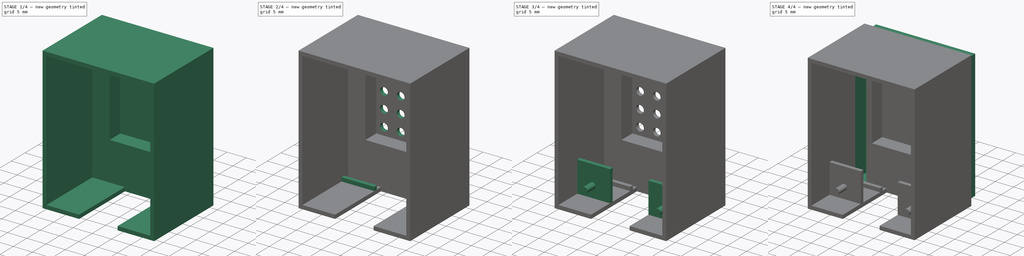
[diagram: build sequence overview — one tinted view per stage of 4, left to right]
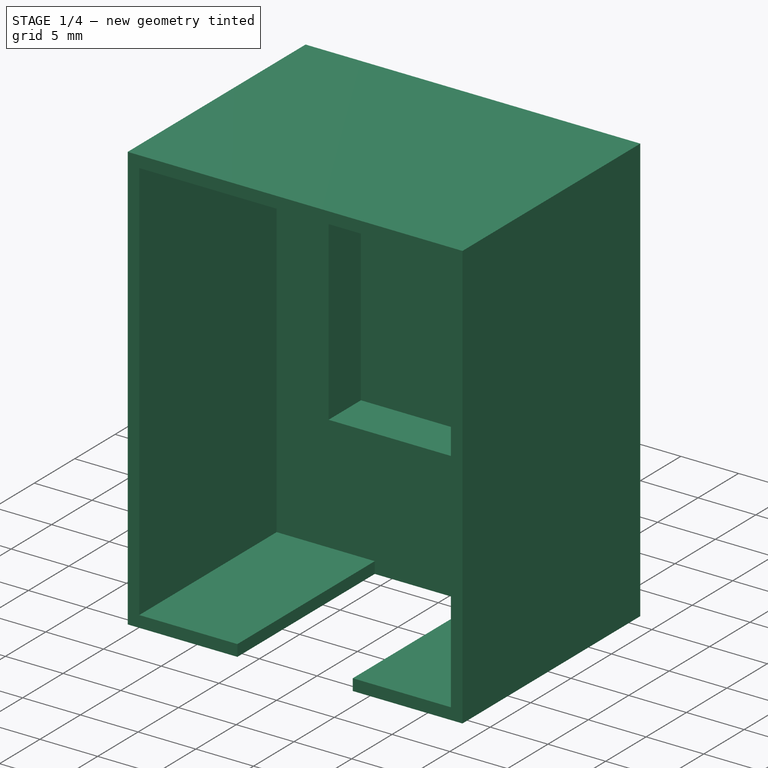
[diagram: stage 1 of 4 — iso view after this stage's code; geometry added in this stage tinted green]
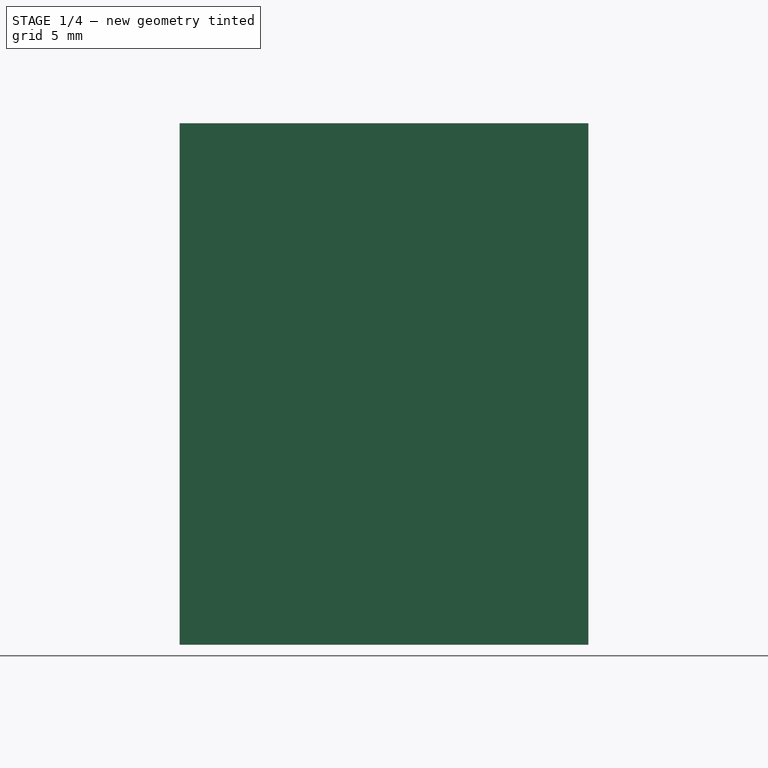
[diagram: stage 1 of 4 — front view after this stage's code; geometry added in this stage tinted green]
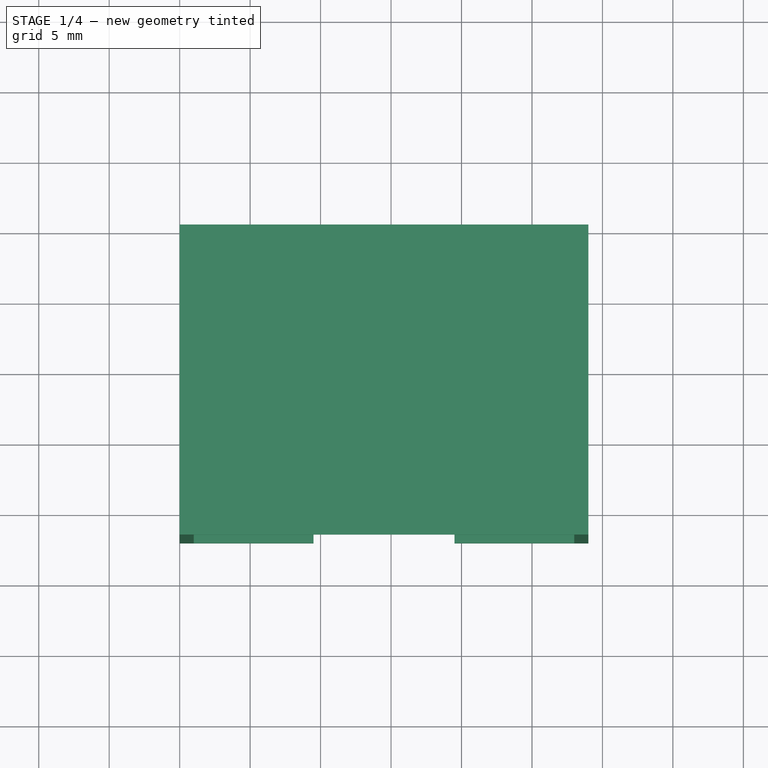
[diagram: stage 1 of 4 — top view after this stage's code; geometry added in this stage tinted green]
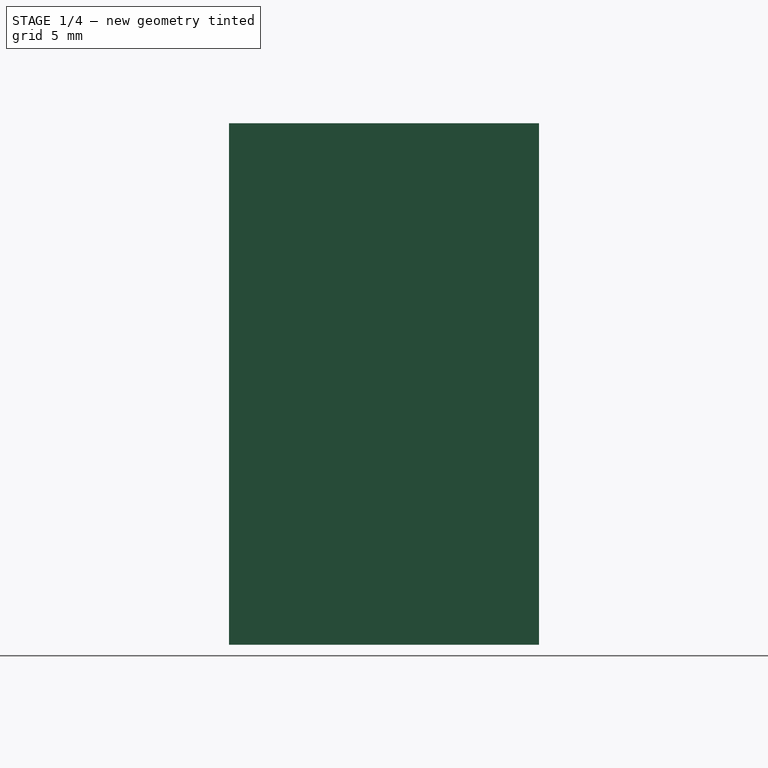
[diagram: stage 1 of 4 — right view after this stage's code; geometry added in this stage tinted green]
FCSTD DOCUMENT  (FreeCAD 0.19R24291 (Git))
Label: ir_box
License: All rights reserved
LicenseURL: http://en.wikipedia.org/wiki/All_rights_reserved
objects: Sketcher::SketchObject×13, PartDesign::Pad×7, PartDesign::Pocket×6, PartDesign::LinearPattern×2, PartDesign::Body×2, PartDesign::MultiTransform×1
note: 44 computed .brp shape members not serialized (recipe doc carries the construction recipe); baked Part::Feature solids carry a one-line shape summary decoded from their .brp

FEATURE [Sketcher::SketchObject] Sketch
  FullyConstrained = true
  MapMode = 5
  Placement = pos=(0,0,0) rot=(1,0,0;1.5708rad)
  Support = -> [XZ_Plane]
  sketch-geometry (4):
    g0: LineSegment StartX=0 StartY=0 StartZ=0 EndX=29 EndY=0 EndZ=0
    g1: LineSegment StartX=29 StartY=0 StartZ=0 EndX=29 EndY=37 EndZ=0
    g2: LineSegment StartX=29 StartY=37 StartZ=0 EndX=0 EndY=37 EndZ=0
    g3: LineSegment StartX=0 StartY=37 StartZ=0 EndX=0 EndY=0 EndZ=0
  constraints (11):
    c: Coincident(g0,g1)
    c: Coincident(g1,g2)
    c: Coincident(g2,g3)
    c: Coincident(g3,g0)
    c: Horizontal(g0)
    c: Horizontal(g2)
    c: Vertical(g1)
    c: Vertical(g3)
    c: Coincident(g0,g-1)
    c: Distance(g1) = 37
    c: Distance(g2) = 29
FEATURE [PartDesign::Pad] Pad
  Direction = (1,1,1)
  Length = 22
  Length2 = 100
  Placement = pos=(0,0,0) rot=(1,0,0;1.5708rad)
  Profile = -> Sketch
  Type = 0
FEATURE [Sketcher::SketchObject] Sketch002
  ExternalGeometry = -> [Pad]
  FullyConstrained = true
  MapMode = 5
  Placement = pos=(0,-22,0) rot=(1,0,0;1.5708rad)
  Support = -> [Pad]
  sketch-geometry (4):
    g0: LineSegment StartX=1 StartY=1 StartZ=0 EndX=28 EndY=1 EndZ=0
    g1: LineSegment StartX=28 StartY=1 StartZ=0 EndX=28 EndY=36 EndZ=0
    g2: LineSegment StartX=28 StartY=36 StartZ=0 EndX=1 EndY=36 EndZ=0
    g3: LineSegment StartX=1 StartY=36 StartZ=0 EndX=1 EndY=1 EndZ=0
  constraints (12):
    c: Coincident(g0,g1)
    c: Coincident(g1,g2)
    c: Coincident(g2,g3)
    c: Coincident(g3,g0)
    c: Horizontal(g0)
    c: Horizontal(g2)
    c: Vertical(g1)
    c: Vertical(g3)
    c: Distance(g1,g-3) = 1
    c: DistanceX(g-2,g0) = 1
    c: DistanceY(g-1,g0) = 1
    c: Distance(g2,g-4) = 1
FEATURE [PartDesign::Pocket] Pocket  label="Wemos Pocket001"
  BaseFeature = -> Pad
  Length = 17
  Length2 = 100
  Placement = pos=(0,0,0) rot=(1,0,0;1.5708rad)
  Profile = -> Sketch002
  Type = 0
FEATURE [Sketcher::SketchObject] Sketch003
  ExternalGeometry = -> [Pocket]
  FullyConstrained = true
  MapMode = 5
  Placement = pos=(0,-5,1e-16) rot=(1,0,0;1.5708rad)
  Support = -> [Pocket]
  sketch-geometry (4):
    g0: LineSegment StartX=5.5 StartY=36 StartZ=0 EndX=23.5 EndY=36 EndZ=0
    g1: LineSegment StartX=23.5 StartY=36 StartZ=0 EndX=23.5 EndY=11 EndZ=0
    g2: LineSegment StartX=23.5 StartY=11 StartZ=0 EndX=5.5 EndY=11 EndZ=0
    g3: LineSegment StartX=5.5 StartY=11 StartZ=0 EndX=5.5 EndY=36 EndZ=0
  constraints (12):
    c: Coincident(g0,g1)
    c: Coincident(g1,g2)
    c: Coincident(g2,g3)
    c: Coincident(g3,g0)
    c: Horizontal(g0)
    c: Horizontal(g2)
    c: Vertical(g1)
    c: Vertical(g3)
    c: PointOnObject(g0,g-3)
    c: Distance(g2,g-6) = 4.5
    c: Distance(g1,g-4) = 4.5
    c: Distance(g1) = 25
FEATURE [PartDesign::Pocket] Pocket001  label="Chip Pocket"
  BaseFeature = -> Pocket
  Length = 4
  Length2 = 100
  Placement = pos=(0,0,0) rot=(1,0,0;1.5708rad)
  Profile = -> Sketch003
  Type = 0
FEATURE [Sketcher::SketchObject] Sketch004
  ExternalGeometry = -> [Pocket001]
  FullyConstrained = true
  MapMode = 5
  Placement = pos=(0,-22,0) rot=(1,0,0;1.5708rad)
  Support = -> [Pocket001]
  sketch-geometry (6):
    g0: LineSegment StartX=9.5 StartY=0 StartZ=0 EndX=19.5 EndY=0 EndZ=0
    g1: LineSegment StartX=19.5 StartY=0 StartZ=0 EndX=19.5 EndY=1 EndZ=0
    g2: LineSegment StartX=19.5 StartY=1 StartZ=0 EndX=9.5 EndY=1 EndZ=0
    g3: LineSegment StartX=9.5 StartY=1 StartZ=0 EndX=9.5 EndY=0 EndZ=0
    g4: LineSegment StartX=1 StartY=1 StartZ=0 EndX=9.5 EndY=1 EndZ=0
    g5: LineSegment StartX=19.5 StartY=1 StartZ=0 EndX=28 EndY=1 EndZ=0
  constraints (16):
    c: Coincident(g0,g1)
    c: Coincident(g1,g2)
    c: Coincident(g2,g3)
    c: Coincident(g3,g0)
    c: Horizontal(g0)
    c: Horizontal(g2)
    c: Vertical(g1)
    c: Vertical(g3)
    c: PointOnObject(g0,g-1)
    c: PointOnObject(g1,g-3)
    c: Distance(g2) = 10
    c: Coincident(g4,g-3)
    c: Coincident(g4,g2)
    c: Coincident(g5,g1)
    c: Coincident(g5,g-3)
    c: Equal(g5,g4)
FEATURE [PartDesign::Pocket] Pocket002  label="USB Port"
  BaseFeature = -> Pocket001
  Length = 17
  Length2 = 100
  Placement = pos=(0,0,0) rot=(1,0,0;1.5708rad)
  Profile = -> Sketch004
  Type = 0
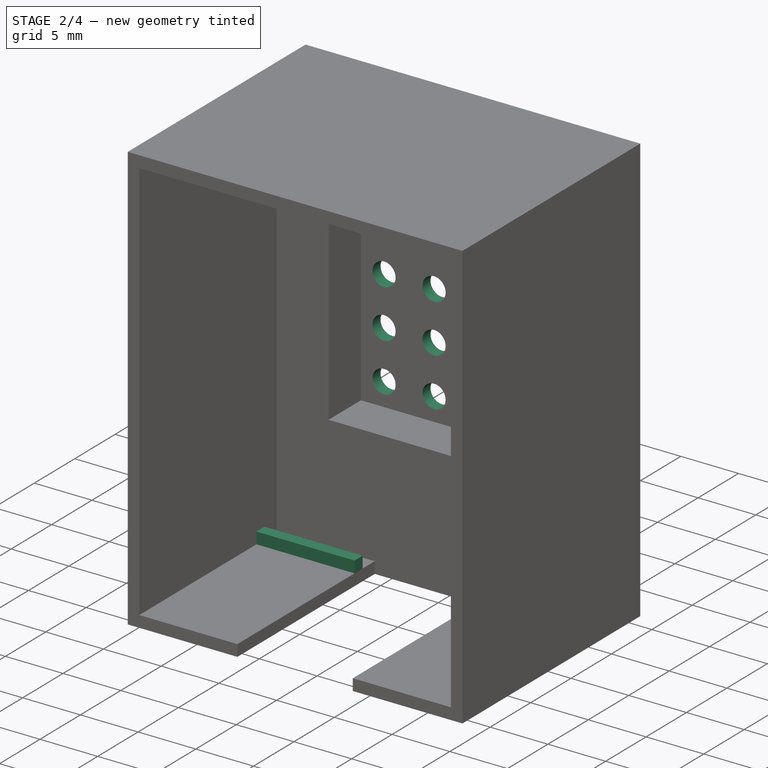
[diagram: stage 2 of 4 — iso view after this stage's code; geometry added in this stage tinted green]
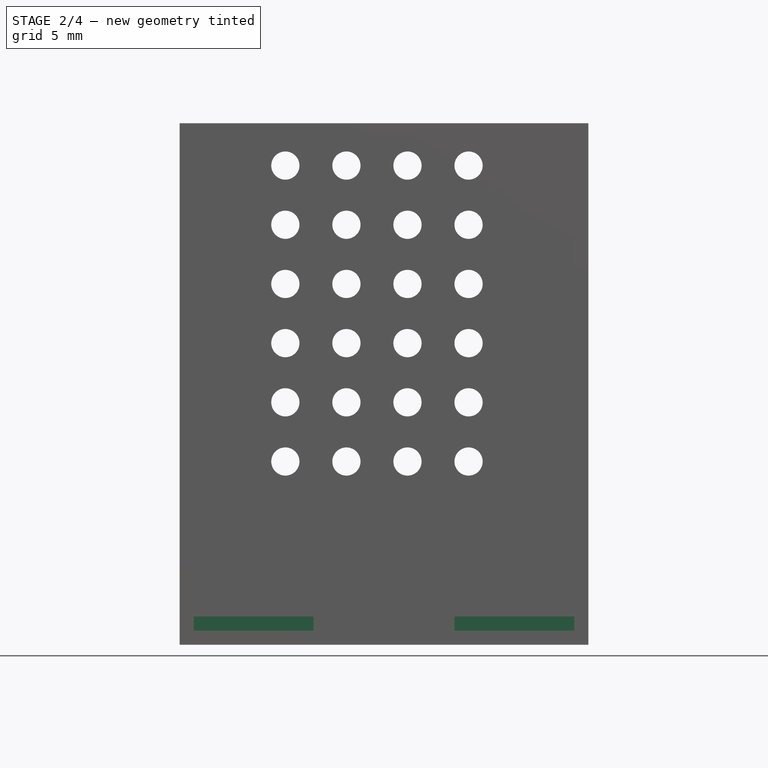
[diagram: stage 2 of 4 — front view after this stage's code; geometry added in this stage tinted green]
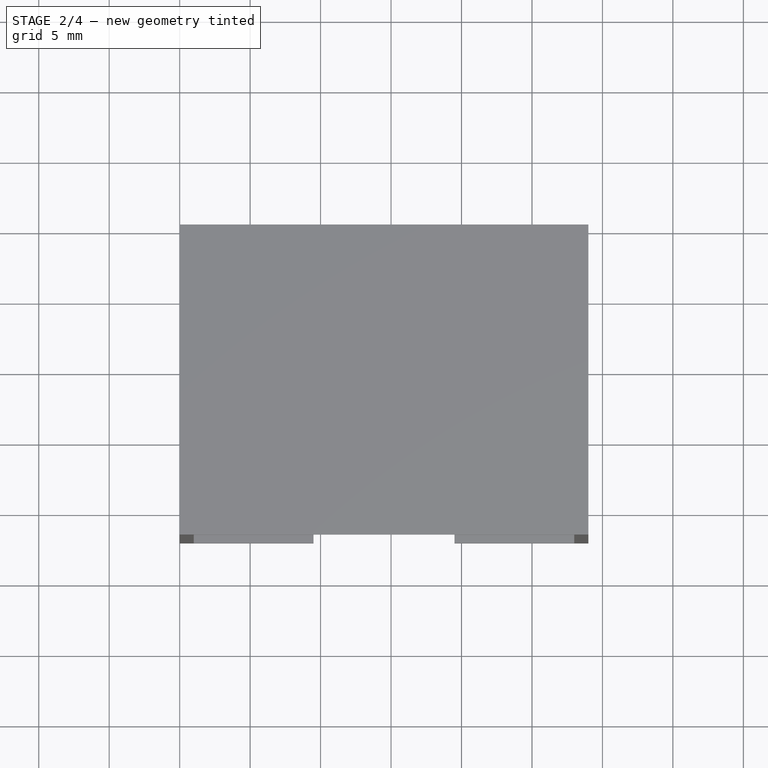
[diagram: stage 2 of 4 — top view after this stage's code; geometry added in this stage tinted green]
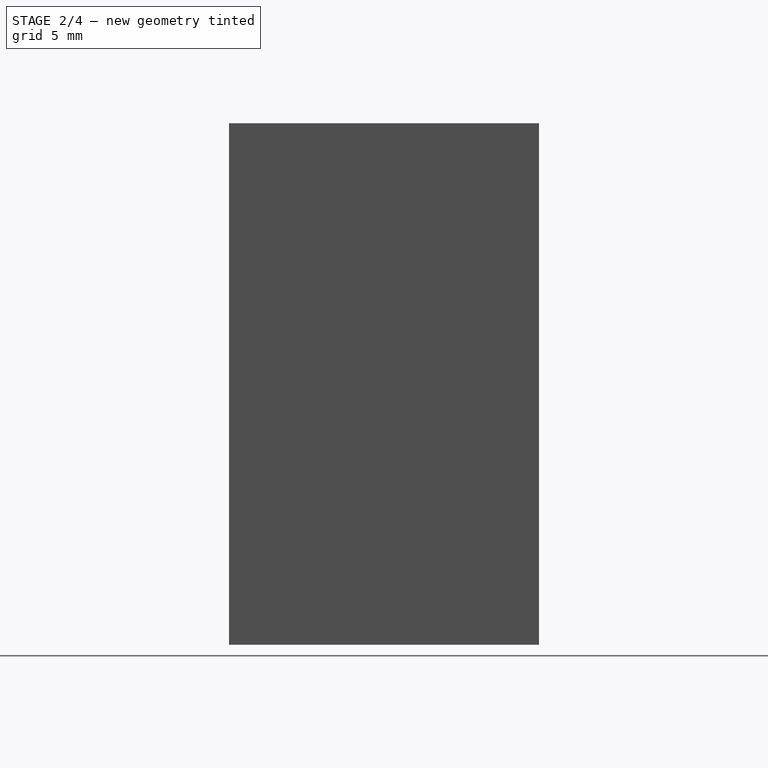
[diagram: stage 2 of 4 — right view after this stage's code; geometry added in this stage tinted green]
FEATURE [Sketcher::SketchObject] Sketch005
  ExternalGeometry = -> [Pocket002]
  FullyConstrained = true
  MapMode = 5
  Placement = pos=(0,-1,0) rot=(1,0,0;1.5708rad)
  Support = -> [Pocket002]
  sketch-geometry (3):
    g0: Circle CenterX=7.5 CenterY=13 CenterZ=0 NormalX=0 NormalY=0 NormalZ=1 AngleXU=0 Radius=1
    g1: LineSegment StartX=7.5 StartY=11 StartZ=0 EndX=7.5 EndY=13 EndZ=0
    g2: LineSegment StartX=7.5 StartY=13 StartZ=0 EndX=5.5 EndY=13 EndZ=0
  constraints (9):
    c: PointOnObject(g1,g-3)
    c: Coincident(g1,g0)
    c: Vertical(g1)
    c: Coincident(g2,g0)
    c: PointOnObject(g2,g-4)
    c: Horizontal(g2)
    c: Equal(g2,g1)
    c: Diameter(g0) = 2
    c: Distance(g1) = 2
FEATURE [PartDesign::Pocket] Pocket003  label="Chip Airhole"
  BaseFeature = -> Pocket002
  Length = 5
  Length2 = 100
  Placement = pos=(0,0,0) rot=(1,0,0;1.5708rad)
  Profile = -> Sketch005
  Type = 0
FEATURE [PartDesign::LinearPattern] LinearPattern
  Direction = -> Sketch005 [H_Axis]
  Length = 13
  Occurrences = 4
  Placement = pos=(0,0,0) rot=(1,0,0;1.5708rad)
FEATURE [PartDesign::LinearPattern] LinearPattern001
  Direction = -> Sketch005 [V_Axis]
  Length = 21
  Occurrences = 6
  Placement = pos=(0,0,0) rot=(1,0,0;1.5708rad)
FEATURE [PartDesign::MultiTransform] MultiTransform  label="Chip Airholes"
  BaseFeature = -> Pocket003
  Originals = -> [Pocket003]
  Placement = pos=(0,0,0) rot=(1,0,0;1.5708rad)
  Transformations = -> [LinearPattern,LinearPattern001]
FEATURE [Sketcher::SketchObject] Sketch006
  ExternalGeometry = -> [MultiTransform]
  FullyConstrained = true
  MapMode = 5
  Placement = pos=(1,0,0) rot=(0.707107,0,0.707107;3.14159rad)
  Support = -> [MultiTransform]
  sketch-geometry (4):
    g0: LineSegment StartX=1 StartY=15 StartZ=0 EndX=9 EndY=15 EndZ=0
    g1: LineSegment StartX=9 StartY=15 StartZ=0 EndX=9 EndY=14 EndZ=0
    g2: LineSegment StartX=9 StartY=14 StartZ=0 EndX=1 EndY=14 EndZ=0
    g3: LineSegment StartX=1 StartY=14 StartZ=0 EndX=1 EndY=15 EndZ=0
  constraints (11):
    c: Coincident(g0,g1)
    c: Coincident(g1,g2)
    c: Coincident(g2,g3)
    c: Coincident(g3,g0)
    c: Horizontal(g0)
    c: Horizontal(g2)
    c: Vertical(g1)
    c: Tangent(g-4,g3)
    c: Distance(g0,g-5) = 10
    c: Distance(g1) = 1
    c: Distance(g0) = 8
FEATURE [Sketcher::SketchObject] Sketch008
  FullyConstrained = false
  MapMode = 5
  Placement = pos=(0,3e-15,1) rot=(0,0,1;3.14159rad)
  sketch-geometry (10):
    g0: LineSegment StartX=-9.5 StartY=7.5 StartZ=0 EndX=-1 EndY=7.5 EndZ=0
    g1: LineSegment StartX=-1 StartY=7.5 StartZ=0 EndX=-1 EndY=6.5 EndZ=0
    g2: LineSegment StartX=-1 StartY=6.5 StartZ=0 EndX=-9.5 EndY=6.5 EndZ=0
    g3: LineSegment StartX=-9.5 StartY=6.5 StartZ=0 EndX=-9.5 EndY=7.5 EndZ=0
    g4: LineSegment StartX=-28 StartY=7.5 StartZ=0 EndX=-19.5 EndY=7.5 EndZ=0
    g5: LineSegment StartX=-19.5 StartY=7.5 StartZ=0 EndX=-19.5 EndY=6.5 EndZ=0
    g6: LineSegment StartX=-19.5 StartY=6.5 StartZ=0 EndX=-28 EndY=6.5 EndZ=0
    g7: LineSegment StartX=-28 StartY=6.5 StartZ=0 EndX=-28 EndY=7.5 EndZ=0
    g8: LineSegment StartX=-19.5 StartY=6.5 StartZ=0 EndX=-19.5 EndY=5 EndZ=0
    g9: LineSegment StartX=-9.5 StartY=6.5 StartZ=0 EndX=-9.5 EndY=5 EndZ=0
  constraints (18):
    c: Coincident(g0,g1)
    c: Coincident(g1,g2)
    c: Coincident(g2,g3)
    c: Coincident(g3,g0)
    c: Horizontal(g0)
    c: Horizontal(g2)
    c: Coincident(g4,g5)
    c: Coincident(g5,g6)
    c: Coincident(g6,g7)
    c: Coincident(g7,g4)
    c: Horizontal(g4)
    c: Horizontal(g6)
    c: Equal(g5,g3)
    c: Distance(g3) = 1
    c: Coincident(g8,g5)
    c: Coincident(g9,g2)
    c: Equal(g8,g9)
    c: Distance(g8) = 1.5
FEATURE [PartDesign::Pad] Pad002  label="Security Pad"
  BaseFeature = -> MultiTransform
  Direction = (1,1,1)
  Length = 1
  Length2 = 100
  Placement = pos=(0,0,0) rot=(1,0,0;1.5708rad)
  Profile = -> Sketch008
  Type = 0
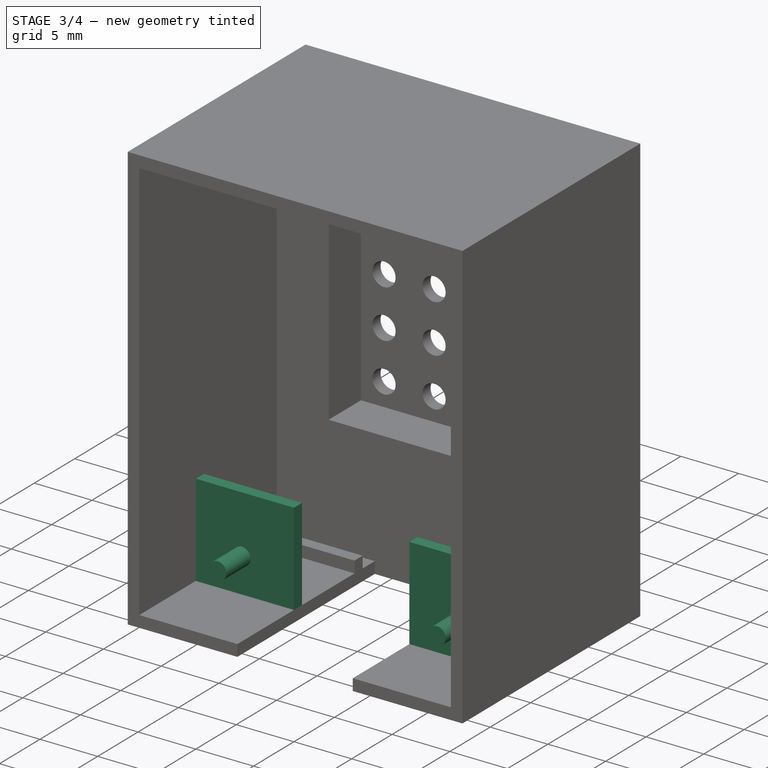
[diagram: stage 3 of 4 — iso view after this stage's code; geometry added in this stage tinted green]
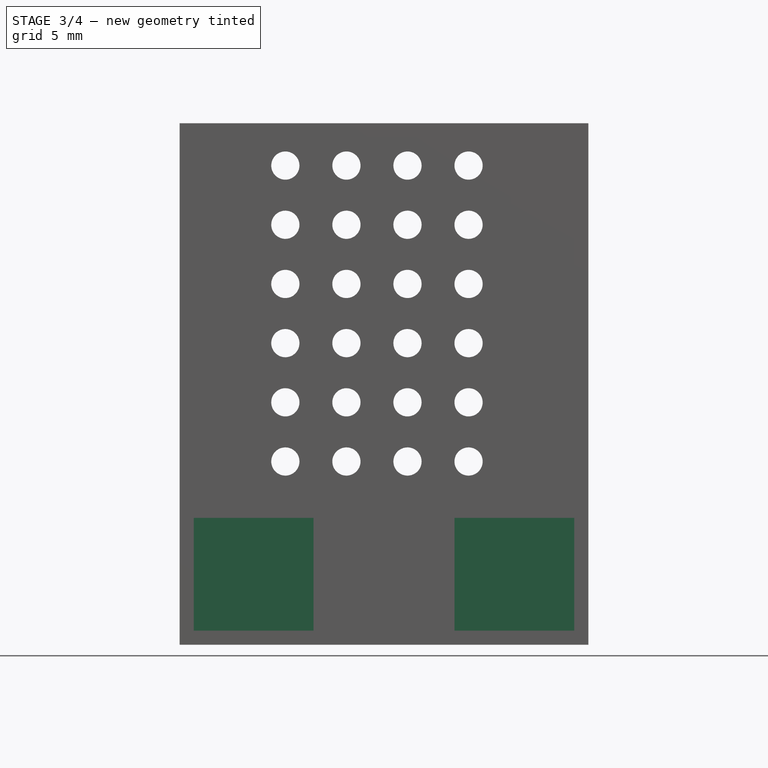
[diagram: stage 3 of 4 — front view after this stage's code; geometry added in this stage tinted green]
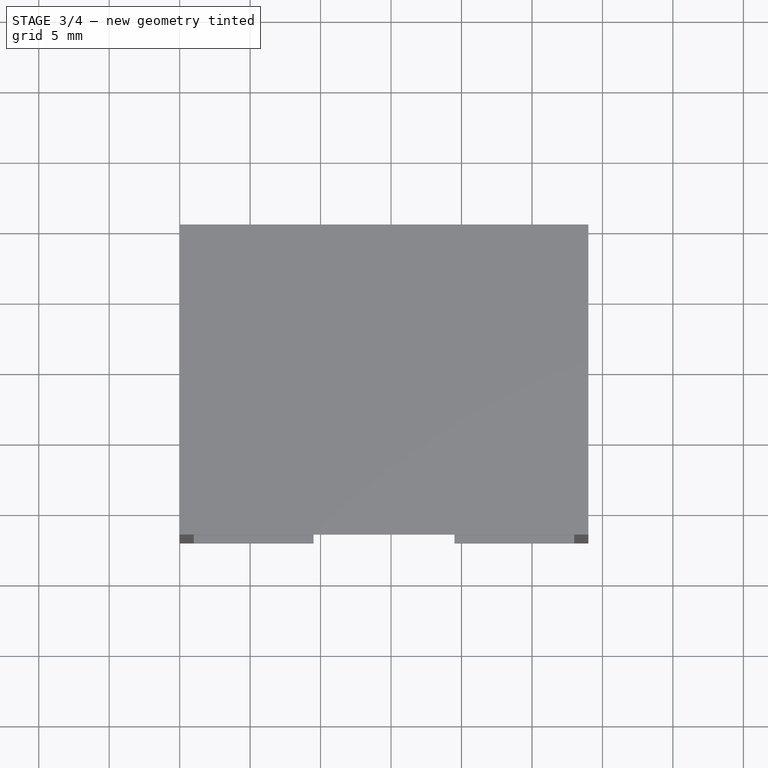
[diagram: stage 3 of 4 — top view after this stage's code; geometry added in this stage tinted green]
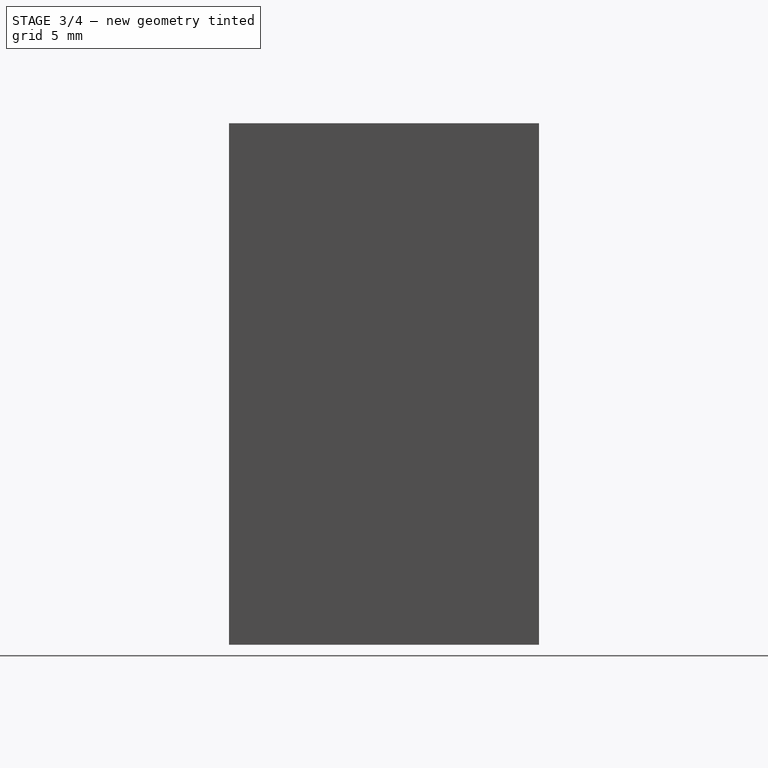
[diagram: stage 3 of 4 — right view after this stage's code; geometry added in this stage tinted green]
FEATURE [PartDesign::Pad] Pad001  label="Sensor Stand"
  BaseFeature = -> Pad002
  Direction = (1,1,1)
  Length = 27
  Length2 = 100
  Placement = pos=(0,0,0) rot=(1,0,0;1.5708rad)
  Profile = -> Sketch006
  Type = 0
FEATURE [Sketcher::SketchObject] Sketch009
  ExternalGeometry = -> [Pad001]
  FullyConstrained = true
  MapMode = 5
  Placement = pos=(0,-15,3.3e-15) rot=(1,0,0;1.5708rad)
  Support = -> [Pad001]
  sketch-geometry (5):
    g0: Circle CenterX=5 CenterY=4 CenterZ=0 NormalX=0 NormalY=0 NormalZ=1 AngleXU=0 Radius=0.75
    g1: LineSegment StartX=5 StartY=4 StartZ=0 EndX=1 EndY=4 EndZ=0
    g2: LineSegment StartX=5 StartY=4 StartZ=0 EndX=5 EndY=1 EndZ=0
    g3: Circle CenterX=24 CenterY=4 CenterZ=0 NormalX=0 NormalY=0 NormalZ=1 AngleXU=0 Radius=0.75
    g4: LineSegment StartX=5 StartY=4 StartZ=0 EndX=24 EndY=4 EndZ=0
  constraints (14):
    c: Diameter(g0) = 1.5
    c: Coincident(g1,g0)
    c: PointOnObject(g1,g-3)
    c: Horizontal(g1)
    c: Coincident(g2,g0)
    c: PointOnObject(g2,g-4)
    c: Vertical(g2)
    c: Distance(g2) = 3
    c: Distance(g1) = 4
    c: Equal(g3,g0)
    c: Coincident(g4,g0)
    c: Coincident(g4,g3)
    c: Horizontal(g4)
    c: Distance(g4) = 19
FEATURE [Sketcher::SketchObject] Sketch010
  FullyConstrained = false
  MapMode = 5
  Placement = pos=(0,-15,7e-15) rot=(1,0,0;1.5708rad)
  sketch-geometry (6):
    g0: LineSegment StartX=9.5 StartY=12 StartZ=0 EndX=19.5 EndY=12 EndZ=0
    g1: LineSegment StartX=19.5 StartY=12 StartZ=0 EndX=19.5 EndY=1 EndZ=0
    g2: LineSegment StartX=19.5 StartY=1 StartZ=0 EndX=9.5 EndY=1 EndZ=0
    g3: LineSegment StartX=9.5 StartY=1 StartZ=0 EndX=9.5 EndY=12 EndZ=0
    g4: LineSegment StartX=9.5 StartY=1 StartZ=0 EndX=9.5 EndY=1 EndZ=0
    g5: LineSegment StartX=19.5 StartY=1 StartZ=0 EndX=19.5 EndY=1 EndZ=0
  constraints (11):
    c: Coincident(g0,g1)
    c: Coincident(g1,g2)
    c: Coincident(g2,g3)
    c: Coincident(g3,g0)
    c: Horizontal(g0)
    c: Vertical(g1)
    c: Vertical(g3)
    c: Distance(g0) = 10
    c: Coincident(g4,g2)
    c: Coincident(g5,g1)
    c: Equal(g5,g4)
FEATURE [PartDesign::Pocket] Pocket004
  BaseFeature = -> Pad001
  Length = 5
  Length2 = 100
  Placement = pos=(0,0,0) rot=(1,0,0;1.5708rad)
  Profile = -> Sketch010
  Type = 0
FEATURE [PartDesign::Pad] Pad003  label="Security Pin"
  BaseFeature = -> Pocket004
  Direction = (1,1,1)
  Length = 3
  Length2 = 100
  Placement = pos=(0,0,0) rot=(1,0,0;1.5708rad)
  Profile = -> Sketch009
  Type = 0
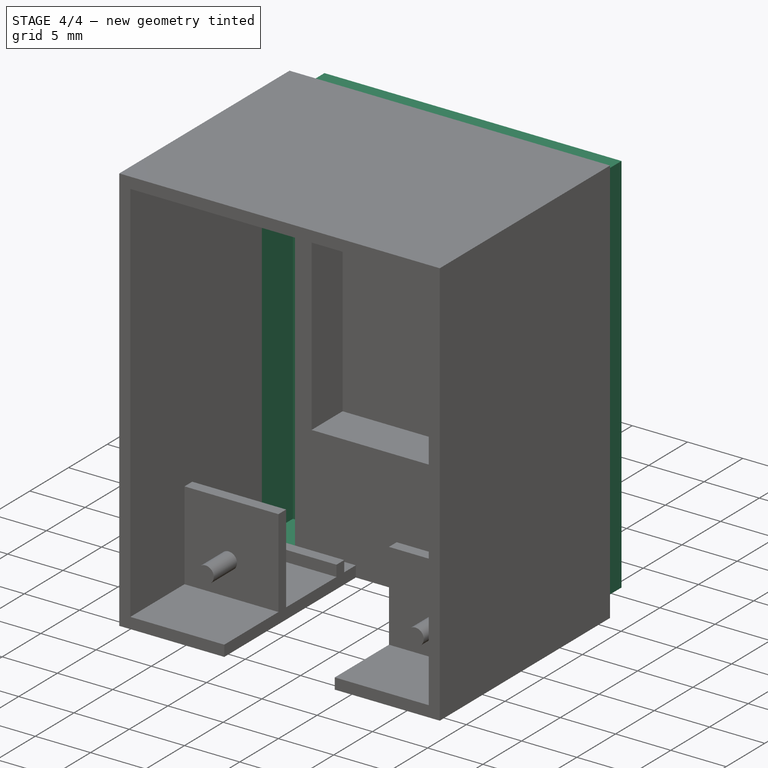
[diagram: stage 4 of 4 — iso view after this stage's code; geometry added in this stage tinted green]
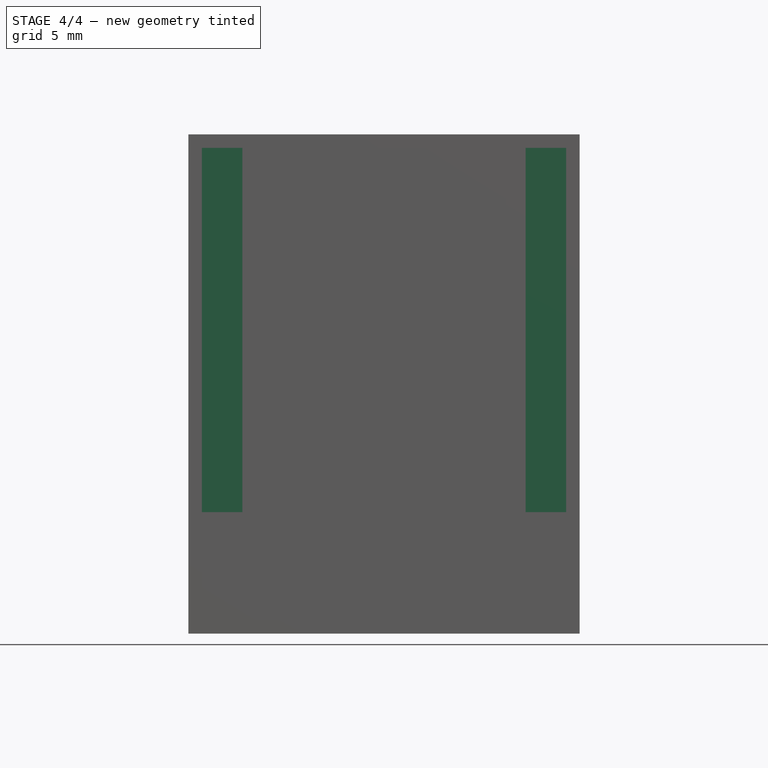
[diagram: stage 4 of 4 — front view after this stage's code; geometry added in this stage tinted green]
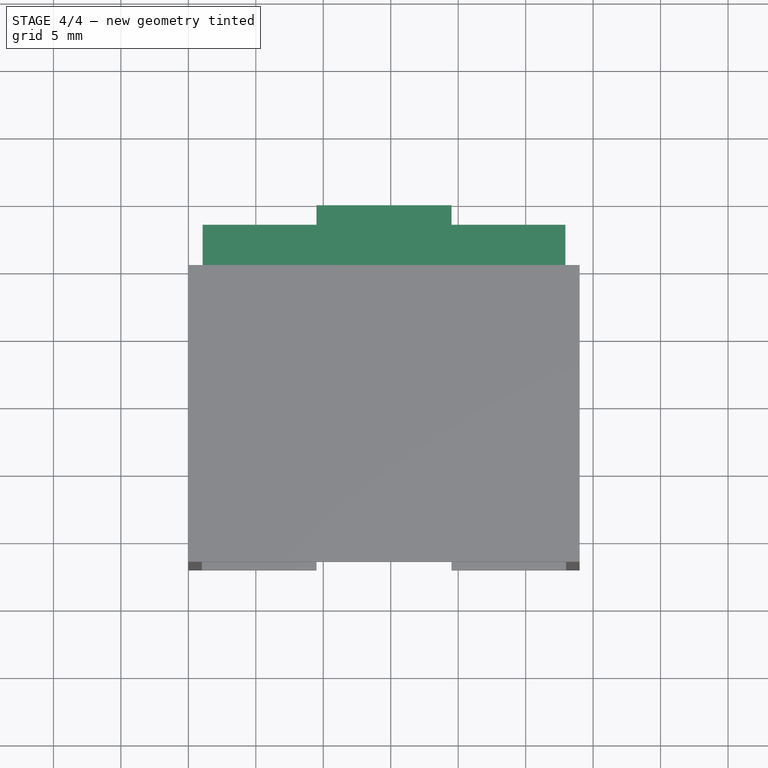
[diagram: stage 4 of 4 — top view after this stage's code; geometry added in this stage tinted green]
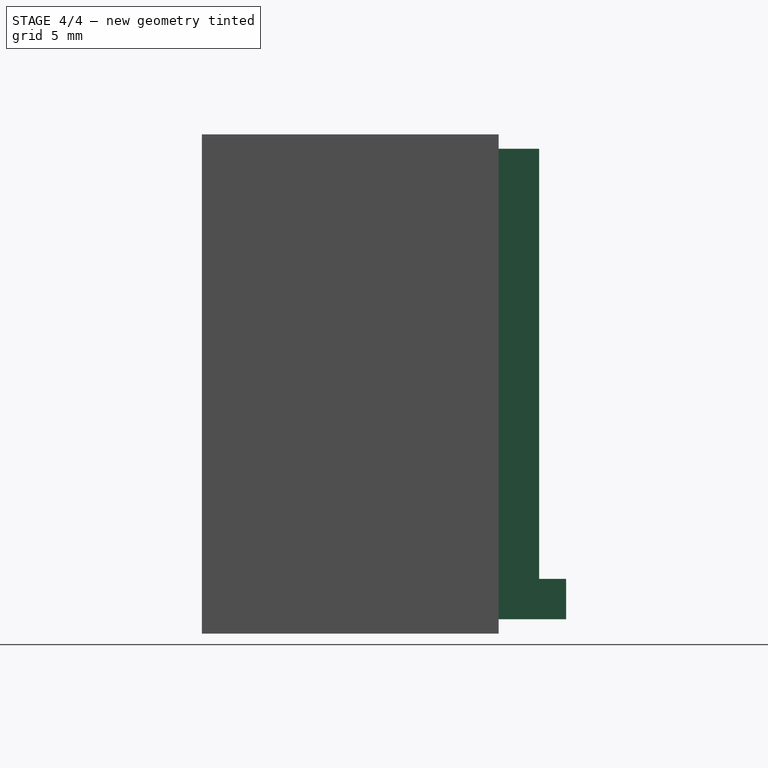
[diagram: stage 4 of 4 — right view after this stage's code; geometry added in this stage tinted green]
FEATURE [Sketcher::SketchObject] Sketch011
  FullyConstrained = true
  MapMode = 5
  Placement = pos=(0,0,0) rot=(1,0,0;1.5708rad)
  Support = -> [XZ_Plane001]
  sketch-geometry (4):
    g0: LineSegment StartX=0 StartY=0 StartZ=0 EndX=29 EndY=0 EndZ=0
    g1: LineSegment StartX=29 StartY=0 StartZ=0 EndX=29 EndY=37 EndZ=0
    g2: LineSegment StartX=29 StartY=37 StartZ=0 EndX=0 EndY=37 EndZ=0
    g3: LineSegment StartX=0 StartY=37 StartZ=0 EndX=0 EndY=0 EndZ=0
  constraints (11):
    c: Coincident(g0,g1)
    c: Coincident(g1,g2)
    c: Coincident(g2,g3)
    c: Coincident(g3,g0)
    c: Horizontal(g0)
    c: Horizontal(g2)
    c: Vertical(g1)
    c: Vertical(g3)
    c: Coincident(g0,g-1)
    c: Distance(g2) = 29
    c: Distance(g1) = 37
FEATURE [PartDesign::Pad] Pad004
  Direction = (1,1,1)
  Length = 1
  Length2 = 100
  Placement = pos=(0,0,0) rot=(1,0,0;1.5708rad)
  Profile = -> Sketch011
  Type = 0
FEATURE [Sketcher::SketchObject] Sketch012
  ExternalGeometry = -> [Pad004]
  FullyConstrained = true
  MapMode = 5
  Placement = pos=(0,0,0) rot=(-1,0,0;1.5708rad)
  Support = -> [Pad004]
  sketch-geometry (8):
    g0: LineSegment StartX=1.06066 StartY=-1.06066 StartZ=0 EndX=27.9393 EndY=-1.06066 EndZ=0
    g1: LineSegment StartX=27.9393 StartY=-1.06066 StartZ=0 EndX=27.9393 EndY=-35.9393 EndZ=0
    g2: LineSegment StartX=27.9393 StartY=-35.9393 StartZ=0 EndX=1.06066 EndY=-35.9393 EndZ=0
    g3: LineSegment StartX=1.06066 StartY=-35.9393 StartZ=0 EndX=1.06066 EndY=-1.06066 EndZ=0
    g4: LineSegment StartX=0 StartY=0 StartZ=0 EndX=1.06066 EndY=-1.06066 EndZ=0
    g5: LineSegment StartX=27.9393 StartY=-1.06066 StartZ=0 EndX=29 EndY=0 EndZ=0
    g6: LineSegment StartX=27.9393 StartY=-35.9393 StartZ=0 EndX=29 EndY=-37 EndZ=0
    g7: LineSegment StartX=0 StartY=-37 StartZ=0 EndX=1.06066 EndY=-35.9393 EndZ=0
  constraints (20):
    c: Coincident(g0,g1)
    c: Coincident(g1,g2)
    c: Coincident(g2,g3)
    c: Coincident(g3,g0)
    c: Horizontal(g0)
    c: Horizontal(g2)
    c: Vertical(g1)
    c: Vertical(g3)
    c: Coincident(g4,g-1)
    c: Coincident(g4,g0)
    c: Coincident(g5,g0)
    c: Coincident(g5,g-3)
    c: Coincident(g6,g1)
    c: Coincident(g6,g-4)
    c: Coincident(g7,g-4)
    c: Coincident(g7,g2)
    c: Equal(g4,g5)
    c: Equal(g5,g7)
    c: Distance(g6) = 1.5
    c: Angle(g-4,g7) = 0.785398
FEATURE [PartDesign::Pad] Pad005
  BaseFeature = -> Pad004
  Direction = (1,1,1)
  Length = 3
  Length2 = 100
  Placement = pos=(0,0,0) rot=(1,0,0;1.5708rad)
  Profile = -> Sketch012
  Type = 0
FEATURE [Sketcher::SketchObject] Sketch013
  ExternalGeometry = -> [Pad005]
  FullyConstrained = true
  MapMode = 5
  Placement = pos=(0,3,-7e-16) rot=(-1,0,0;1.5708rad)
  Support = -> [Pad005]
  sketch-geometry (6):
    g0: LineSegment StartX=9.5 StartY=-1.06066 StartZ=0 EndX=19.5 EndY=-1.06066 EndZ=0
    g1: LineSegment StartX=19.5 StartY=-1.06066 StartZ=0 EndX=19.5 EndY=-4.06066 EndZ=0
    g2: LineSegment StartX=19.5 StartY=-4.06066 StartZ=0 EndX=9.5 EndY=-4.06066 EndZ=0
    g3: LineSegment StartX=9.5 StartY=-4.06066 StartZ=0 EndX=9.5 EndY=-1.06066 EndZ=0
    g4: LineSegment StartX=9.5 StartY=-1.06066 StartZ=0 EndX=1.06066 EndY=-1.06066 EndZ=0
    g5: LineSegment StartX=19.5 StartY=-1.06066 StartZ=0 EndX=27.9393 EndY=-1.06066 EndZ=0
  constraints (15):
    c: Coincident(g0,g1)
    c: Coincident(g1,g2)
    c: Coincident(g2,g3)
    c: Coincident(g3,g0)
    c: Horizontal(g2)
    c: Vertical(g1)
    c: Vertical(g3)
    c: Tangent(g0,g-3) = -1.5708
    c: Distance(g1) = 3
    c: Distance(g2) = 10
    c: Coincident(g4,g0)
    c: Coincident(g4,g-3)
    c: Coincident(g5,g0)
    c: Coincident(g5,g-3)
    c: Equal(g5,g4)
FEATURE [PartDesign::Pad] Pad006
  BaseFeature = -> Pad005
  Direction = (1,1,1)
  Length = 2
  Length2 = 100
  Placement = pos=(0,0,0) rot=(1,0,0;1.5708rad)
  Profile = -> Sketch013
  Type = 0
FEATURE [PartDesign::Body] Body001  label="Lid"
  Group = -> [Sketch011,Pad004,Sketch012,Pad005,Sketch013,Pad006]
  Origin = -> Origin001
  Placement = pos=(0,-22,0) rot=(0,0,1;0rad)
  Tip = -> Pad006
FEATURE [Sketcher::SketchObject] Sketch014
  ExternalGeometry = -> [Pad003]
  FullyConstrained = true
  MapMode = 5
  Placement = pos=(0,-5,1e-16) rot=(1,0,0;1.5708rad)
  Support = -> [Pad003]
  sketch-geometry (8):
    g0: LineSegment StartX=1 StartY=36 StartZ=0 EndX=4 EndY=36 EndZ=0
    g1: LineSegment StartX=4 StartY=36 StartZ=0 EndX=4 EndY=1 EndZ=0
    g2: LineSegment StartX=4 StartY=1 StartZ=0 EndX=1 EndY=1 EndZ=0
    g3: LineSegment StartX=1 StartY=1 StartZ=0 EndX=1 EndY=36 EndZ=0
    g4: LineSegment StartX=25 StartY=36 StartZ=0 EndX=28 EndY=36 EndZ=0
    g5: LineSegment StartX=28 StartY=36 StartZ=0 EndX=28 EndY=1 EndZ=0
    g6: LineSegment StartX=28 StartY=1 StartZ=0 EndX=25 EndY=1 EndZ=0
    g7: LineSegment StartX=25 StartY=1 StartZ=0 EndX=25 EndY=36 EndZ=0
  constraints (21):
    c: Coincident(g0,g1)
    c: Coincident(g1,g2)
    c: Coincident(g2,g3)
    c: Coincident(g3,g0)
    c: Horizontal(g0)
    c: Horizontal(g2)
    c: Vertical(g1)
    c: Vertical(g3)
    c: Coincident(g4,g5)
    c: Coincident(g5,g6)
    c: Coincident(g6,g7)
    c: Coincident(g7,g4)
    c: Horizontal(g4)
    c: Horizontal(g6)
    c: Vertical(g7)
    c: Equal(g0,g4)
    c: Equal(g7,g1)
    c: Distance(g0) = 3
    c: Coincident(g-4,g0)
    c: Coincident(g4,g-3)
    c: Coincident(g-3,g5)
FEATURE [PartDesign::Pocket] Pocket005  label="GPIO Pin Pouch"
  BaseFeature = -> Pad003
  Length = 4
  Length2 = 100
  Placement = pos=(0,0,0) rot=(1,0,0;1.5708rad)
  Profile = -> Sketch014
  Type = 0
FEATURE [PartDesign::Body] Body  label="Box"
  Group = -> [Sketch,Pad,Sketch002,Pocket,Sketch003,Pocket001,Sketch004,Pocket002,Sketch005,Pocket003,MultiTransform,LinearPattern,LinearPattern001,Pad002,Sketch006,Pad001,Pocket004,Sketch008,Sketch009,Pad003,Sketch010,Sketch014,Pocket005]
  Origin = -> Origin
  Tip = -> Pocket005
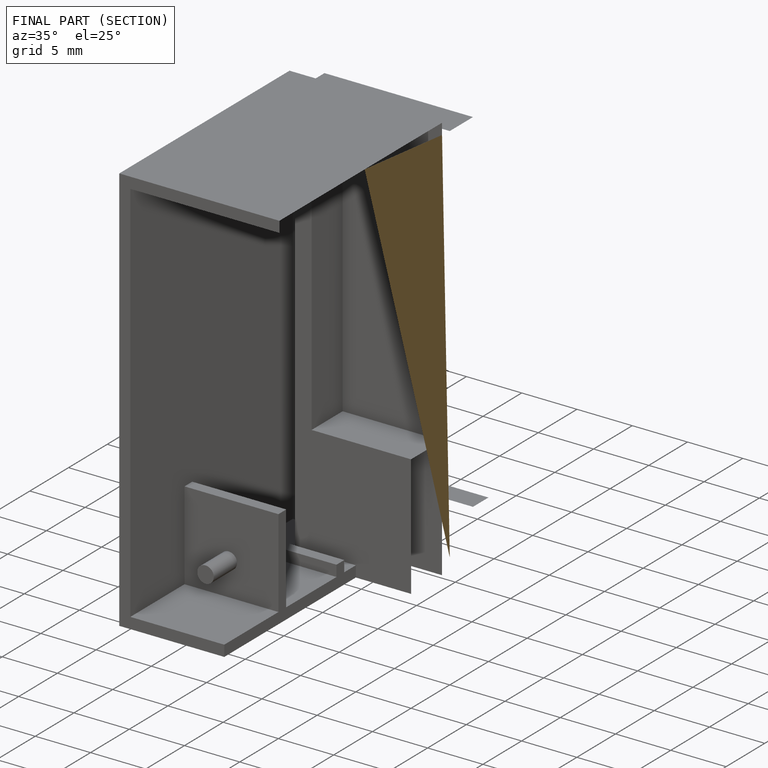
[diagram: finished part — half-section view (interior)]
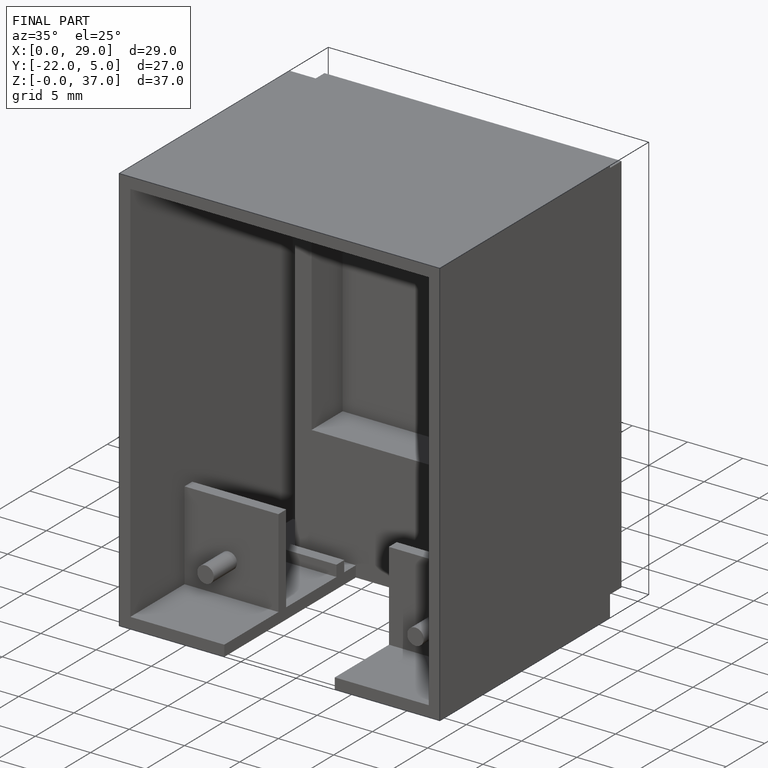
[diagram: finished part — iso view with bounding-box wireframe]
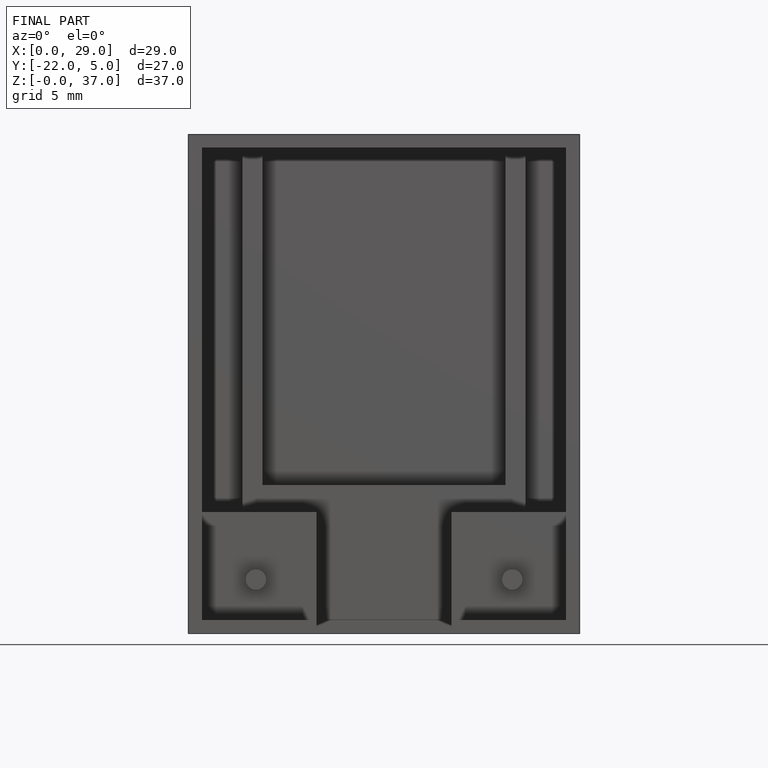
[diagram: finished part — front view with bounding-box wireframe]
